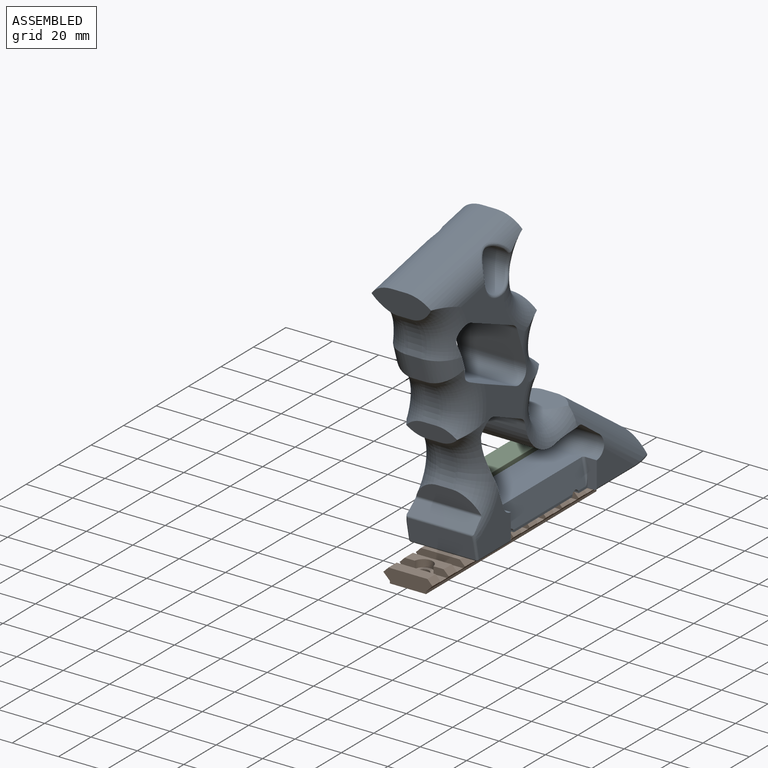
[diagram: assembled view]
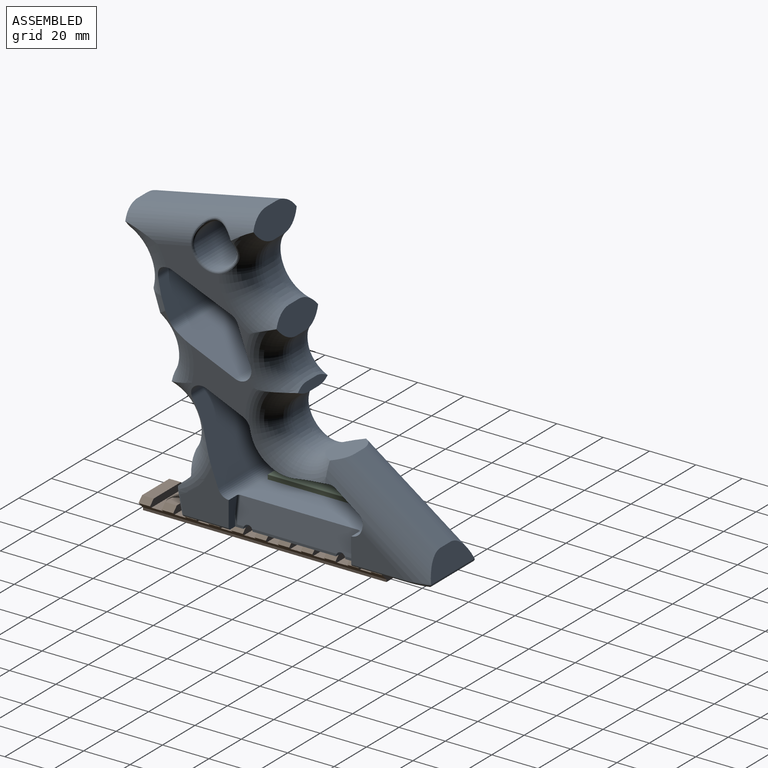
[diagram: assembled view, second angle]
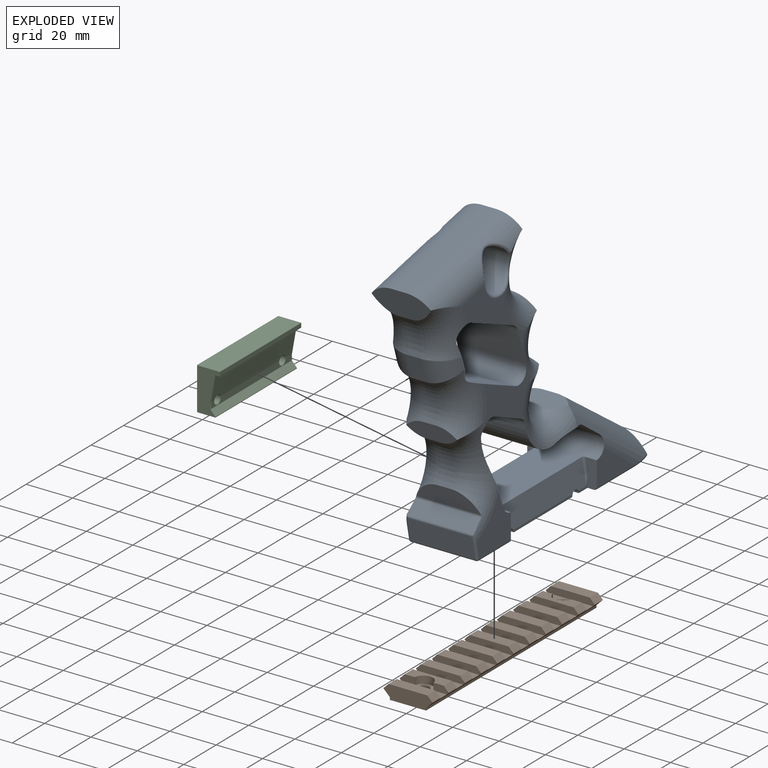
[diagram: exploded view]
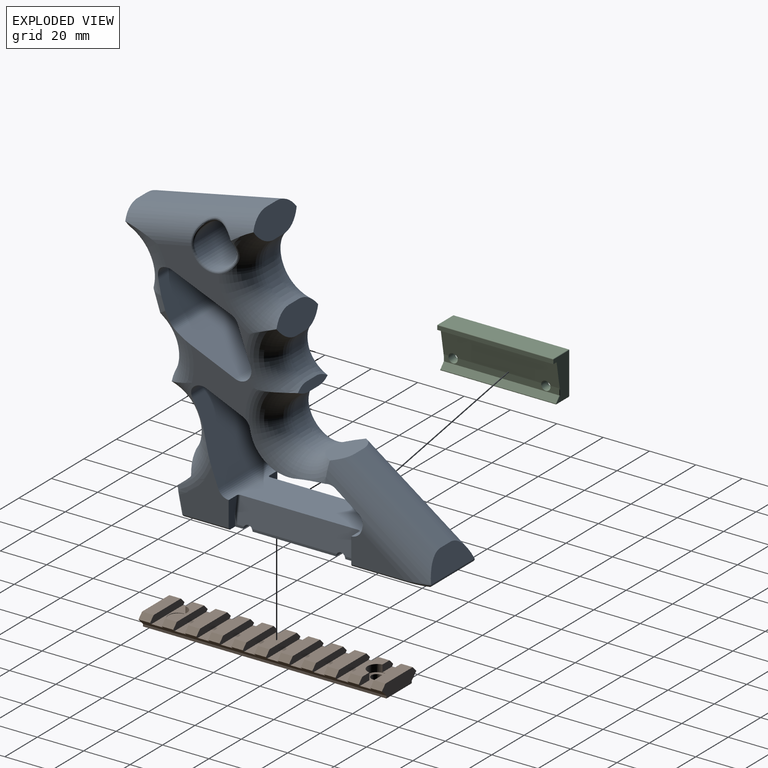
[diagram: exploded view, second angle]
ASSEMBLY  parts=3 mates=2
PART A: 108 faces, bbox 139x137.2x31.5 mm
  f0: plane 28x23.02mm, normal (0,1,0), area 623.6mm2, adj f2,f3,f9,f10,f64,f97,f101,f107
  f1: plane 36x22mm, normal (0,1,0), area 792mm2, adj f5,f6,f106,f107
  f2: plane 6.76x3.77mm, normal (0,0,-1), area 4.8mm2, adj f0,f94,f97,f102,f107
  f3: plane 6.76x3.77mm, normal (0,0,1), area 4.8mm2, adj f0,f98,f101,f104,f107
  f4: plane 37.7x28mm, normal (0,1,0), area 1015.7mm2, adj f58,f59,f60,f61,f63,f95,f96,f99
  f5: plane 36.54x1mm, normal (0,0,-1), area 36.2mm2, adj f1,f94,f106,f107
  f6: plane 36.54x1mm, normal (0,0,1), area 36.2mm2, adj f1,f98,f106,f107
  f7: plane 21.55x21.05mm, normal (0,0,1), area 270.7mm2, adj f9,f13,f53,f65,f79,f101
  f8: plane 21.55x21.05mm, normal (0,0,-1), area 270.7mm2, adj f10,f13,f26,f68,f79,f97
  f9: cylinder r=1mm len=19.52mm, axis (1,0,0), area 30.7mm2, adj f0,f7,f62,f101
  f10: cylinder r=1mm len=19.52mm, axis (-1,0,0), area 30.7mm2, adj f0,f8,f66,f97
  f11: plane 52.45x19.03mm, normal (0,-1,0), area 953.7mm2, adj f12,f13,f94,f98,f102,f103,f104,f105
  f12: cylinder r=5mm len=30mm, axis (0,0,-1), area 368.9mm2, adj f11,f14,f17,f20,f22,f78,f96,f100
  f13: cylinder r=5mm len=30mm, axis (0,0,-1), area 179mm2, adj f7,f8,f11,f79,f97,f101,f102,f104
  f14: plane 23.39x13.6mm, normal (0,0,1), area 179.5mm2, adj f12,f20,f60,f100
  f15: plane 38.97x33.36mm, normal (0,0,1), area 307.3mm2, adj f51,f52,f54,f56,f72,f73,f85,f90
  f16: plane 26.89x22.88mm, normal (0,0,1), area 310.5mm2, adj f50,f51,f53,f55,f74,f80,f88,f89
  f17: plane 23.39x13.6mm, normal (0,0,-1), area 179.5mm2, adj f12,f22,f63,f96
  f18: plane 38.97x33.36mm, normal (0,0,-1), area 307.3mm2, adj f24,f25,f28,f57,f72,f73,f81,f90
  f19: plane 26.89x22.88mm, normal (0,0,-1), area 310.5mm2, adj f23,f24,f26,f27,f74,f80,f88,f89
  f20: cylinder r=12mm len=53.66mm, axis (-0.82,-0.58,0), area 853.5mm2, adj f12,f14,f38,f39,f40,f50,f58,f77
  f21: cylinder r=12mm len=13.02mm, axis (0.31,0.95,0), area 126.5mm2, adj f31,f55,f56,f75
  f22: cylinder r=12mm len=53.66mm, axis (0.82,0.58,0), area 853.5mm2, adj f12,f17,f23,f38,f39,f40,f61,f77
  f23: torus R=23.05mm, axis (0,0,1), area 787.4mm2, adj f19,f22,f24,f37,f38,f43,f76,f77
  f24: torus R=23.31mm, axis (0,0,1), area 460.6mm2, adj f18,f19,f23,f25,f33,f37,f45,f73
  f25: torus R=26.2mm, axis (0,0,1), area 637mm2, adj f18,f24,f33,f34,f44,f57,f83
  f26: torus R=26.36mm, axis (0,0,1), area 525.1mm2, adj f8,f19,f27,f30,f32,f42,f48,f70
  f27: torus R=26.67mm, axis (0,0,1), area 451.1mm2, adj f19,f26,f29,f32,f46,f74,f75,f92
  f28: torus R=28.16mm, axis (0,0,1), area 403.7mm2, adj f18,f29,f35,f47,f57,f75,f93
  f29: cylinder r=12mm len=13.02mm, axis (-0.31,-0.95,0), area 126.5mm2, adj f27,f28,f31,f75
  f30: plane 27.92x8.02mm, normal (-0.95,0.31,0), area 181.2mm2, adj f26,f48,f53,f71
  f31: plane 10.4x6mm, normal (-0.95,0.31,0), area 65.6mm2, adj f21,f29,f46,f47
  f32: plane 22.94x8.39mm, normal (-0.95,0.31,0), area 131.9mm2, adj f26,f27,f46,f48,f53,f55
  f33: plane 26.54x12.21mm, normal (0.96,-0.26,0), area 230.1mm2, adj f24,f25,f44,f45,f51,f52
  f34: plane 27.47x12.77mm, normal (0.96,-0.26,0), area 255mm2, adj f25,f36,f44,f52,f54,f57
  f35: plane 27.07x13.37mm, normal (-0.95,0.31,0), area 244.7mm2, adj f28,f36,f47,f54,f56,f57
  f36: plane 55.65x11.54mm, normal (-0.2,-0.98,0), area 341mm2, adj f34,f35,f54,f57
  f37: plane 18.83x4.22mm, normal (0.96,-0.26,0), area 54.8mm2, adj f23,f24,f43,f45,f50,f51
  f38: plane 23.39x12.7mm, normal (-0.13,-0.99,0), area 196.2mm2, adj f20,f22,f23,f39,f43,f50
  f39: plane 37.32x26.47mm, normal (0.58,-0.82,0), area 274.5mm2, adj f20,f22,f38,f40
  f40: plane 26.83x9.62mm, normal (0.95,-0.31,0), area 210.1mm2, adj f20,f22,f39,f58,f59,f61
  f41: plane 28x9.57mm, normal (-0.98,0.2,0), area 273.4mm2, adj f64,f65,f67,f68,f69,f70
  f42: plane 29.55x5.46mm, normal (-0.68,-0.73,0), area 195mm2, adj f26,f53,f67,f69,f70,f71
  f43: cylinder r=11.05mm len=21.33mm, axis (0,0,1), area 206mm2, adj f23,f37,f38,f50
  f44: cylinder r=14.2mm len=23.69mm, axis (0,0,1), area 177.9mm2, adj f25,f33,f34,f52
  f45: cylinder r=11.31mm len=16.58mm, axis (0,0,1), area 117.1mm2, adj f24,f33,f37,f51
  f46: cylinder r=14.67mm len=19.41mm, axis (0,0,1), area 135.4mm2, adj f27,f31,f32,f55
  f47: cylinder r=16.16mm len=17.36mm, axis (0,0,1), area 116.3mm2, adj f28,f31,f35,f56
  f48: cylinder r=14.36mm len=20.73mm, axis (0,0,1), area 148.4mm2, adj f26,f30,f32,f53
  f49: cylinder r=8.48mm len=28mm, axis (0,0,1), area 1475.4mm2, adj f81,f82,f83,f84,f85,f86
  f50: torus R=23.05mm, axis (0,0,1), area 787.4mm2, adj f16,f20,f37,f38,f43,f51,f76,f77
  f51: torus R=23.31mm, axis (0,0,1), area 460.6mm2, adj f15,f16,f33,f37,f45,f50,f52,f73
  f52: torus R=26.2mm, axis (0,0,1), area 637mm2, adj f15,f33,f34,f44,f51,f54,f86
  f53: torus R=26.36mm, axis (0,0,1), area 525.1mm2, adj f7,f16,f30,f32,f42,f48,f55,f67
  f54: cylinder r=12mm len=58.44mm, axis (-0.98,0.2,0), area 805.4mm2, adj f15,f34,f35,f36,f52,f56,f84,f86
  f55: torus R=26.67mm, axis (0,0,1), area 451.1mm2, adj f16,f21,f32,f46,f53,f74,f75,f92
  f56: torus R=28.16mm, axis (0,0,1), area 403.7mm2, adj f15,f21,f35,f47,f54,f75,f93
  f57: cylinder r=12mm len=58.44mm, axis (0.98,-0.2,0), area 805.4mm2, adj f18,f25,f28,f34,f35,f36,f82,f83
  f58: bspline ~13.86x3.61mm, area 17.3mm2, adj f4,f20,f40,f59,f60
  f59: cylinder r=1mm len=26.83mm, axis (0,0,1), area 49.2mm2, adj f4,f40,f58,f61
  f60: cylinder r=1mm len=23.39mm, axis (1,0,0), area 36.7mm2, adj f4,f14,f58,f100
  f61: bspline ~13.86x3.61mm, area 17.3mm2, adj f4,f22,f40,f59,f63
  f62: sphere r=1mm, area 2.6mm2, adj f9,f64,f65
  f63: cylinder r=1mm len=23.39mm, axis (-1,0,0), area 36.7mm2, adj f4,f17,f61,f96
  f64: cylinder r=1mm len=28mm, axis (0,0,1), area 38.3mm2, adj f0,f41,f62,f66
  f65: cylinder r=1mm len=7.57mm, axis (0.2,0.98,0), area 11.8mm2, adj f7,f41,f62,f67
  f66: sphere r=1mm, area 1.4mm2, adj f10,f64,f68
  f67: bspline ~5.66x2.13mm, area 4.5mm2, adj f41,f42,f53,f65,f69
  f68: cylinder r=1mm len=7.57mm, axis (-0.2,-0.98,0), area 11.8mm2, adj f8,f41,f66,f70
  f69: cylinder r=1mm len=28.93mm, axis (0,0,-1), area 29.1mm2, adj f41,f42,f67,f70
  f70: bspline ~5.66x2.13mm, area 4.5mm2, adj f26,f41,f42,f68,f69
  f71: cylinder r=1mm len=28.39mm, axis (0,0,1), area 32mm2, adj f26,f30,f42,f53
  f72: plane 30x25.78mm, normal (-0.38,0.92,0), area 838mm2, adj f15,f18,f90,f93
  f73: plane 30.67x15.86mm, normal (-0.94,0.34,0), area 482.8mm2, adj f15,f18,f24,f51,f90,f91
  f74: plane 30.65x27.01mm, normal (0.39,-0.92,0), area 853.9mm2, adj f16,f19,f27,f55,f91,f92
  f75: plane 29.35x15.04mm, normal (0.95,-0.32,0), area 439.1mm2, adj f21,f27,f28,f29,f55,f56,f92,f93
  f76: cylinder r=17.3mm len=29.83mm, axis (0,0,1), area 759mm2, adj f23,f50,f77,f89
  f77: plane 29.4x14.23mm, normal (0.13,0.99,0), area 409.4mm2, adj f20,f22,f23,f50,f76,f87
  f78: plane 28.49x10.22mm, normal (-0.59,0.81,0), area 358.4mm2, adj f12,f20,f22,f87
  f79: plane 31.43x30.01mm, normal (0.93,-0.36,0), area 937.7mm2, adj f7,f8,f13,f26,f53,f88
  f80: plane 30x15.91mm, normal (-0.4,0.92,0), area 520.7mm2, adj f16,f19,f88,f89
  f81: torus R=9.48mm, axis (0,0,1), area 23mm2, adj f18,f49,f82,f83
  f82: bspline ~17.88x12.48mm, area 54.3mm2, adj f49,f57,f81,f83
  f83: bspline ~14.9x8.36mm, area 34.1mm2, adj f25,f49,f57,f81,f82
  f84: bspline ~17.88x12.48mm, area 54.3mm2, adj f49,f54,f85,f86
  f85: torus R=9.48mm, axis (0,0,1), area 23mm2, adj f15,f49,f84,f86
  f86: bspline ~14.9x8.36mm, area 34.1mm2, adj f49,f52,f54,f84,f85
  f87: cylinder r=5mm len=29.23mm, axis (0,0,-1), area 108.6mm2, adj f20,f22,f77,f78
  f88: cylinder r=5mm len=30mm, axis (0,0,1), area 342.5mm2, adj f16,f19,f26,f53,f79,f80
  f89: cylinder r=5mm len=30mm, axis (0,0,1), area 151.3mm2, adj f16,f19,f23,f50,f76,f80
  f90: cylinder r=5mm len=30mm, axis (0,0,-1), area 124.7mm2, adj f15,f18,f72,f73
  f91: cylinder r=5mm len=30mm, axis (0,0,-1), area 346.9mm2, adj f16,f19,f24,f51,f73,f74
  f92: cylinder r=5mm len=27.66mm, axis (0,0,-1), area 116.3mm2, adj f27,f55,f74,f75
  f93: cylinder r=5mm len=30mm, axis (0,0,-1), area 329.8mm2, adj f15,f18,f28,f56,f72,f75
  f94: plane 51.25x11.17mm, normal (0,-0.17,-0.98), area 553.8mm2, adj f2,f5,f11,f95,f102,f103,f106,f107
  f95: plane 6.76x5.67mm, normal (0,0,-1), area 6.7mm2, adj f4,f94,f96,f103,f106
  f96: plane 11.82x4.89mm, normal (-1,0,0), area 49.3mm2, adj f4,f12,f17,f63,f95,f103
  f97: plane 11.82x4.89mm, normal (1,0,0), area 49.3mm2, adj f0,f2,f8,f10,f13,f102
  f98: plane 51.25x11.17mm, normal (0,-0.17,0.98), area 553.8mm2, adj f3,f6,f11,f99,f104,f105,f106,f107
  f99: plane 6.76x5.67mm, normal (0,0,1), area 6.7mm2, adj f4,f98,f100,f105,f106
  f100: plane 11.82x4.89mm, normal (-1,0,0), area 49.3mm2, adj f4,f12,f14,f60,f99,f105
  f101: plane 11.82x4.89mm, normal (1,0,0), area 49.3mm2, adj f0,f3,f7,f9,f13,f104
  f102: cylinder r=1mm len=10.99mm, axis (0,0.98,-0.17), area 13.9mm2, adj f2,f11,f13,f94,f97
  f103: cylinder r=1mm len=10.99mm, axis (0,-0.98,0.17), area 13.9mm2, adj f11,f12,f94,f95,f96
  f104: cylinder r=1mm len=10.99mm, axis (0,-0.98,-0.17), area 13.9mm2, adj f3,f11,f13,f98,f101
  f105: cylinder r=1mm len=10.99mm, axis (0,0.98,0.17), area 13.9mm2, adj f11,f12,f98,f99,f100
  f106: cylinder r=2mm len=22mm, axis (0,0,1), area 138.2mm2, adj f1,f4,f5,f6,f94,f95,f98,f99
  f107: cylinder r=2mm len=22mm, axis (0,0,1), area 138.2mm2, adj f0,f1,f2,f3,f5,f6,f94,f98
PART B: 78 faces, bbox 21.2x105x6 mm
  f0: plane 6.59x3.03mm, normal (0,-1,0), area 17.2mm2, adj f4,f10,f20,f52,f77
  f1: plane 6.58x3.03mm, normal (0,-1,0), area 17.2mm2, adj f20,f25,f26,f51,f52,f77
  f2: plane 6.59x3.03mm, normal (0,1,0), area 17.2mm2, adj f4,f6,f16,f71,f73
  f3: plane 6.58x3.03mm, normal (0,1,0), area 17.2mm2, adj f16,f25,f26,f70,f71,f73
  f4: plane 105x2.8mm, normal (0.7,0,-0.71), area 356.8mm2, adj f0,f2,f5,f6,f7,f8,f9,f10
  f5: plane 5x2.24mm, normal (0.71,0,0.7), area 15.8mm2, adj f4,f15,f33,f69
  f6: plane 5.01x2.24mm, normal (0.71,0,0.7), area 15.8mm2, adj f2,f4,f16,f65
  f7: plane 5.01x2.24mm, normal (0.71,0,0.7), area 15.8mm2, adj f4,f17,f61,f67
  f8: plane 5.01x2.24mm, normal (0.71,0,0.7), area 15.8mm2, adj f4,f18,f57,f63
  f9: plane 5.01x2.24mm, normal (0.71,0,0.7), area 15.8mm2, adj f4,f19,f53,f59
  f10: plane 5.01x2.24mm, normal (0.71,0,0.7), area 15.8mm2, adj f0,f4,f20,f46
  f11: plane 5.01x2.24mm, normal (0.71,0,0.7), area 15.8mm2, adj f4,f21,f42,f47
  f12: plane 5.01x2.24mm, normal (0.71,0,0.7), area 15.8mm2, adj f4,f22,f38,f43
  f13: plane 5.01x2.24mm, normal (0.71,0,0.7), area 15.8mm2, adj f4,f23,f34,f39
  f14: plane 5.01x2.24mm, normal (0.71,0,0.7), area 15.8mm2, adj f4,f24,f35,f55
  f15: plane 16.79x5mm, normal (0,0,1), area 84mm2, adj f5,f25,f33,f69
  f16: plane 16.79x5.01mm, normal (0,0,1), area 62.2mm2, adj f2,f3,f6,f25,f65,f73
  f17: plane 16.79x5.01mm, normal (0,0,1), area 84.1mm2, adj f7,f25,f61,f67
  f18: plane 16.79x5.01mm, normal (0,0,1), area 84.1mm2, adj f8,f25,f57,f63
  f19: plane 16.79x5.01mm, normal (0,0,1), area 84.1mm2, adj f9,f25,f53,f59
  f20: plane 16.79x5.01mm, normal (0,0,1), area 62.2mm2, adj f0,f1,f10,f25,f46,f77
  f21: plane 16.79x5.01mm, normal (0,0,1), area 84.1mm2, adj f11,f25,f42,f47
  f22: plane 16.79x5.01mm, normal (0,0,1), area 84.1mm2, adj f12,f25,f38,f43
  f23: plane 16.79x5.01mm, normal (0,0,1), area 84.1mm2, adj f13,f25,f34,f39
  f24: plane 16.79x5.01mm, normal (0,0,1), area 84.1mm2, adj f14,f25,f35,f55
  f25: plane 105x2.24mm, normal (-0.71,0,0.7), area 174mm2, adj f1,f3,f15,f16,f17,f18,f19,f20
  f26: plane 105x2.81mm, normal (-0.7,0,-0.71), area 358.4mm2, adj f1,f3,f25,f27,f32,f33,f34,f35
  f27: plane 105x1.04mm, normal (-1,0,0), area 108.9mm2, adj f26,f28,f32,f33
  f28: plane 105x15.61mm, normal (0,0,-1), area 1600.1mm2, adj f27,f29,f32,f33,f72,f75
  f29: plane 105x1.04mm, normal (1,0,0), area 108.9mm2, adj f4,f28,f32,f33
  f30: plane 5.01x2.24mm, normal (0.71,0,0.7), area 15.8mm2, adj f4,f31,f32,f50
  f31: plane 16.79x5.01mm, normal (0,0,1), area 84.1mm2, adj f25,f30,f32,f50
  f32: plane 21.22x6.05mm, normal (0,-1,0), area 109.7mm2, adj f4,f25,f26,f27,f28,f29,f30,f31
  f33: plane 21.22x6.05mm, normal (0,1,0), area 109.7mm2, adj f4,f5,f15,f25,f26,f27,f28,f29
  f34: plane 21.21x3.03mm, normal (0,1,0), area 58.8mm2, adj f4,f13,f23,f25,f26,f36,f37
  f35: plane 21.21x3.03mm, normal (0,-1,0), area 58.8mm2, adj f4,f14,f24,f25,f26,f36,f37
  f36: plane 4.99x0.02mm, normal (1,0,0), area 0.1mm2, adj f25,f26,f34,f35
  f37: plane 19.62x4.99mm, normal (0,0,1), area 98mm2, adj f4,f26,f34,f35
  f38: plane 21.21x3.03mm, normal (0,1,0), area 58.8mm2, adj f4,f12,f22,f25,f26,f40,f41
  f39: plane 21.21x3.03mm, normal (0,-1,0), area 58.8mm2, adj f4,f13,f23,f25,f26,f40,f41
  f40: plane 4.99x0.02mm, normal (1,0,0), area 0.1mm2, adj f25,f26,f38,f39
  f41: plane 19.62x4.99mm, normal (0,0,1), area 98mm2, adj f4,f26,f38,f39
  f42: plane 21.21x3.03mm, normal (0,1,0), area 58.8mm2, adj f4,f11,f21,f25,f26,f44,f45
  f43: plane 21.21x3.03mm, normal (0,-1,0), area 58.8mm2, adj f4,f12,f22,f25,f26,f44,f45
  f44: plane 4.99x0.02mm, normal (1,0,0), area 0.1mm2, adj f25,f26,f42,f43
  f45: plane 19.62x4.99mm, normal (0,0,1), area 98mm2, adj f4,f26,f42,f43
  f46: plane 21.21x3.03mm, normal (0,1,0), area 58.8mm2, adj f4,f10,f20,f25,f26,f48,f49
  f47: plane 21.21x3.03mm, normal (0,-1,0), area 58.8mm2, adj f4,f11,f21,f25,f26,f48,f49
  f48: plane 4.99x0.02mm, normal (1,0,0), area 0.1mm2, adj f25,f26,f46,f47
  f49: plane 19.62x4.99mm, normal (0,0,1), area 98mm2, adj f4,f26,f46,f47
  f50: plane 21.21x3.03mm, normal (0,1,0), area 58.8mm2, adj f4,f25,f26,f30,f31,f51,f52
  f51: plane 4.99x0.02mm, normal (1,0,0), area 0.1mm2, adj f1,f25,f26,f50
  f52: plane 19.62x4.99mm, normal (0,0,1), area 68.4mm2, adj f0,f1,f4,f26,f50,f77
  f53: plane 21.21x3.03mm, normal (0,-1,0), area 58.8mm2, adj f4,f9,f19,f25,f26,f54,f56
  f54: plane 4.99x0.02mm, normal (1,0,0), area 0.1mm2, adj f25,f26,f53,f55
  f55: plane 21.21x3.03mm, normal (0,1,0), area 58.8mm2, adj f4,f14,f24,f25,f26,f54,f56
  f56: plane 19.62x4.99mm, normal (0,0,1), area 98mm2, adj f4,f26,f53,f55
  f57: plane 21.21x3.03mm, normal (0,-1,0), area 58.8mm2, adj f4,f8,f18,f25,f26,f58,f60
  f58: plane 4.99x0.02mm, normal (1,0,0), area 0.1mm2, adj f25,f26,f57,f59
  f59: plane 21.21x3.03mm, normal (0,1,0), area 58.8mm2, adj f4,f9,f19,f25,f26,f58,f60
  f60: plane 19.62x4.99mm, normal (0,0,1), area 98mm2, adj f4,f26,f57,f59
  f61: plane 21.21x3.03mm, normal (0,-1,0), area 58.8mm2, adj f4,f7,f17,f25,f26,f62,f64
  f62: plane 4.99x0.02mm, normal (1,0,0), area 0.1mm2, adj f25,f26,f61,f63
  f63: plane 21.21x3.03mm, normal (0,1,0), area 58.8mm2, adj f4,f8,f18,f25,f26,f62,f64
  f64: plane 19.62x4.99mm, normal (0,0,1), area 98mm2, adj f4,f26,f61,f63
  f65: plane 21.21x3.03mm, normal (0,-1,0), area 58.8mm2, adj f4,f6,f16,f25,f26,f66,f68
  f66: plane 4.99x0.02mm, normal (1,0,0), area 0.1mm2, adj f25,f26,f65,f67
  f67: plane 21.21x3.03mm, normal (0,1,0), area 58.8mm2, adj f4,f7,f17,f25,f26,f66,f68
  f68: plane 19.62x4.99mm, normal (0,0,1), area 98mm2, adj f4,f26,f65,f67
  f69: plane 21.21x3.03mm, normal (0,-1,0), area 58.8mm2, adj f4,f5,f15,f25,f26,f70,f71
  f70: plane 4.99x0.02mm, normal (1,0,0), area 0.1mm2, adj f3,f25,f26,f69
  f71: plane 19.62x4.99mm, normal (0,0,1), area 68.3mm2, adj f2,f3,f4,f26,f69,f73
  f72: cylinder r=2.5mm len=5mm, axis (0,0,1), area 44.7mm2, adj f28,f74
  f73: cylinder r=4.05mm len=8.1mm, axis (0,0,1), area 39.9mm2, adj f2,f3,f16,f71,f74
  f74: plane 8.1x8.1mm, normal (0,0,1), area 31.9mm2, adj f72,f73
  f75: cylinder r=2.5mm len=5mm, axis (0,0,1), area 44.7mm2, adj f28,f76
  f76: plane 8.1x8.1mm, normal (0,0,1), area 31.9mm2, adj f75,f77
  f77: cylinder r=4.05mm len=8.1mm, axis (0,0,1), area 39.9mm2, adj f0,f1,f20,f52,f76
PART C: 33 faces, bbox 50.1x18.5x9.9 mm
  f0: plane 49.6x2.76mm, normal (0,0,-1), area 120.1mm2, adj f1,f7,f10,f13,f25,f29
  f1: plane 49.6x2.34mm, normal (0,-0.67,-0.74), area 156.6mm2, adj f0,f27,f31,f32
  f2: plane 49.85x7.69mm, normal (0,1,0), area 383.1mm2, adj f9,f24,f28,f32
  f3: plane 49.6x17.98mm, normal (0,0,1), area 791.3mm2, adj f12,f15,f19,f22,f23,f24
  f4: plane 49.6x9.43mm, normal (0,-1,0), area 467.9mm2, adj f16,f17,f18,f19
  f5: plane 50.1x1.75mm, normal (0,0,-1), area 87.7mm2, adj f6,f8,f9,f16
  f6: plane 50.1x2mm, normal (0,1,0), area 100.2mm2, adj f5,f7,f8,f9
  f7: plane 50.1x12.38mm, normal (0,0.17,-0.98), area 549.3mm2, adj f0,f6,f8,f9,f10,f13,f25,f29
  f8: plane 17.98x9.68mm, normal (1,0,0), area 122.3mm2, adj f5,f6,f7,f18,f23,f25,f27,f28
  f9: plane 18.23x9.68mm, normal (-1,0,0), area 124.3mm2, adj f2,f5,f6,f7,f17,f22,f29,f31
  f10: cylinder r=2mm len=4.26mm, axis (0,0,1), area 51.2mm2, adj f0,f7,f11
  f11: plane 8x8mm, normal (0,0,1), area 37.7mm2, adj f10,f12
  f12: cylinder r=4mm len=8mm, axis (0,0,1), area 50.3mm2, adj f3,f11
  f13: cylinder r=2mm len=4.26mm, axis (0,0,1), area 51.2mm2, adj f0,f7,f14
  f14: plane 8x8mm, normal (0,0,1), area 37.7mm2, adj f13,f15
  f15: cylinder r=4mm len=8mm, axis (0,0,1), area 50.2mm2, adj f3,f14,f22
  f16: cylinder r=0.25mm len=50.1mm, axis (-1,0,0), area 19.6mm2, adj f4,f5,f17,f18
  f17: cylinder r=0.25mm len=9.68mm, axis (0,0,-1), area 3.8mm2, adj f4,f9,f16,f20
  f18: cylinder r=0.25mm len=9.68mm, axis (0,0,1), area 3.8mm2, adj f4,f8,f16,f21
  f19: cylinder r=0.25mm len=49.6mm, axis (1,0,0), area 19.5mm2, adj f3,f4,f20,f21
  f20: sphere r=0.25mm, area 0.1mm2, adj f17,f19,f22
  f21: sphere r=0.25mm, area 0.1mm2, adj f18,f19,f23
  f22: cylinder r=0.25mm len=18.23mm, axis (0,-1,0), area 6.9mm2, adj f3,f9,f15,f20,f24
  f23: cylinder r=0.25mm len=17.98mm, axis (0,1,0), area 7.1mm2, adj f3,f8,f21,f26
  f24: cylinder r=0.25mm len=49.85mm, axis (-1,0,0), area 19.5mm2, adj f2,f3,f22,f26
  f25: cylinder r=0.25mm len=2.85mm, axis (0,-1,0), area 0.9mm2, adj f0,f7,f8,f27
  f26: sphere r=0.25mm, area 0.1mm2, adj f23,f24,f28
  f27: cylinder r=0.25mm len=2.58mm, axis (0,-0.74,0.67), area 1.3mm2, adj f1,f8,f25,f30
  f28: cylinder r=0.25mm len=7.69mm, axis (0,0,-1), area 3mm2, adj f2,f8,f26,f30
  f29: cylinder r=0.25mm len=2.85mm, axis (0,1,0), area 0.9mm2, adj f0,f7,f9,f31
  f30: sphere r=0.25mm, area 0.1mm2, adj f27,f28,f32
  f31: cylinder r=0.25mm len=2.76mm, axis (0,0.74,-0.67), area 1.3mm2, adj f1,f9,f29,f32
  f32: cylinder r=0.25mm len=49.85mm, axis (-1,0,0), area 28.7mm2, adj f1,f2,f9,f30,f31
PLACE A rot(axis=(-0.58,-0.58,0.58),120deg) t=(-0.01,-21.07,3.03)mm
PLACE B rot(axis=(0,0,1),180deg) t=(-0.01,-26.45,0)mm
PLACE C rot(axis=(-0.58,-0.58,0.58),120deg) t=(-0.02,-21.07,3.42)mm
MATE fastened C.f7 <-> A.f98  axis (0.98,0,-0.17) through (-10.04,-10.51,9.48)mm
MATE fastened B.f24 <-> A.f1  axis (0,0,1) through (-0.01,-26.46,3.03)mm
